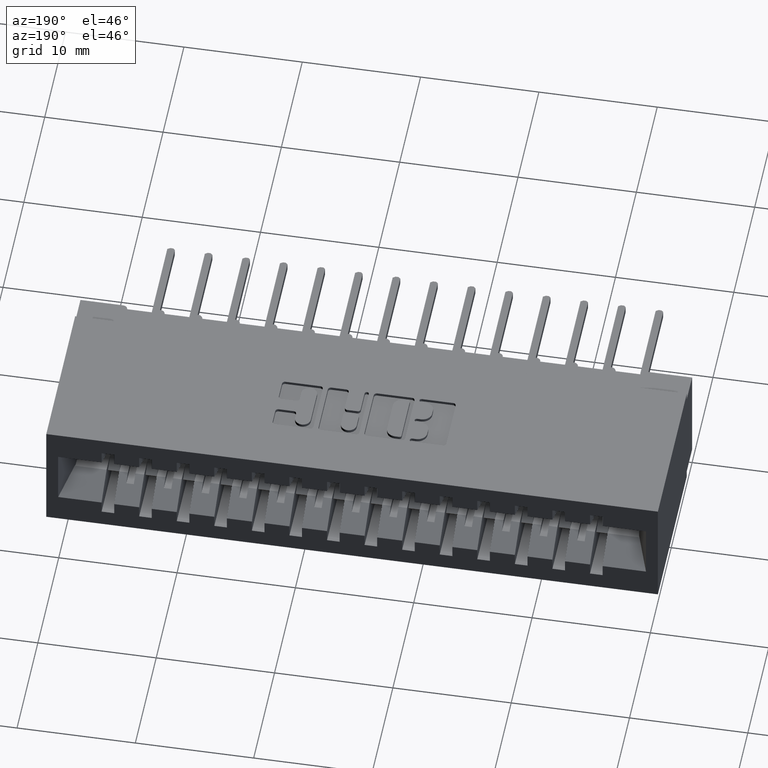
[diagram: clean part render]
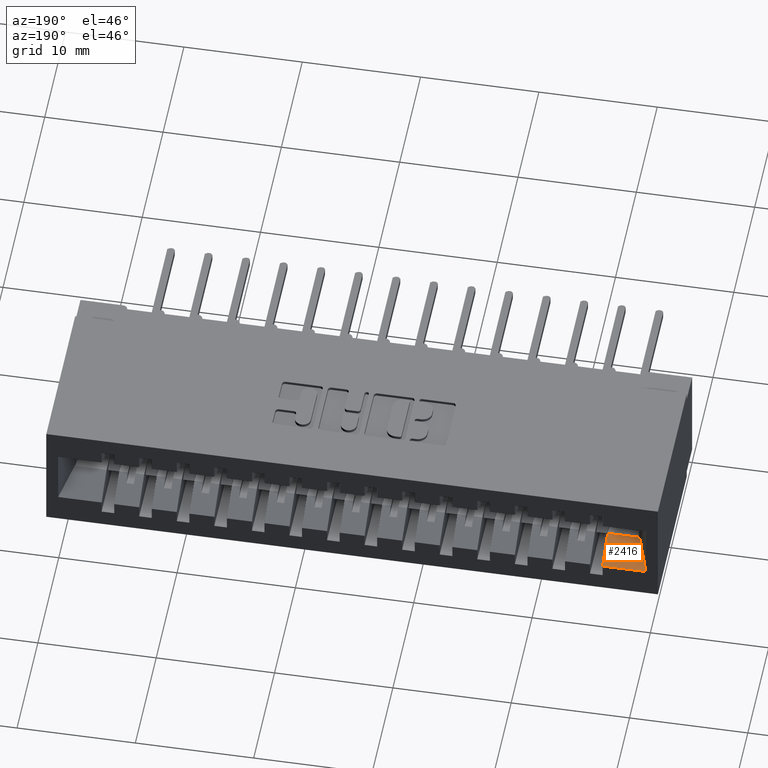
[diagram: same view with one face highlighted and labeled with its STEP entity id]
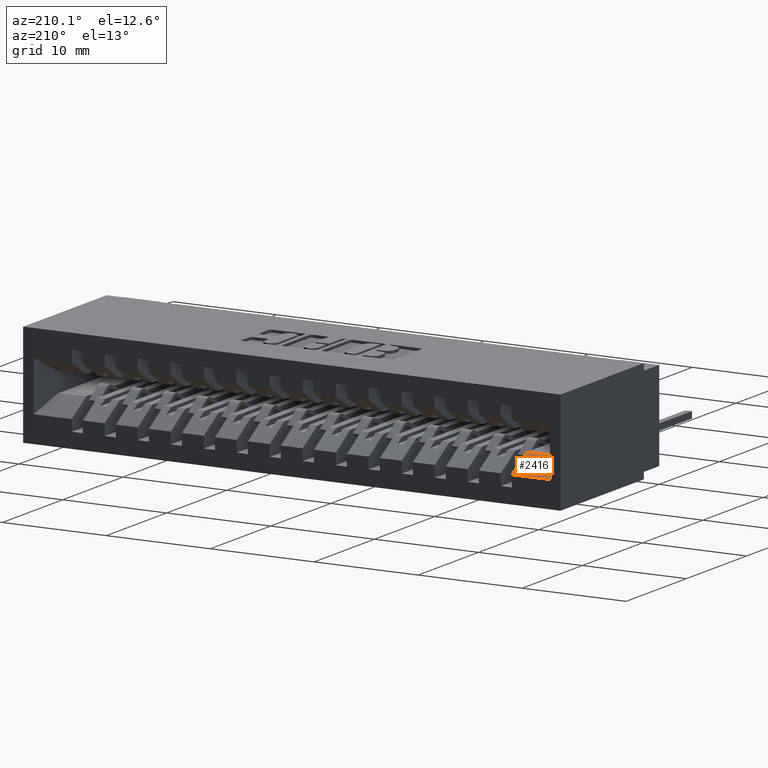
[diagram: same view with one face highlighted and labeled with its STEP entity id]
A machine part, auxiliary view. The second image highlights one B-rep face of the part: STEP entity #2416.
A second angle (auxiliary view) of the same face is appended — the face is thin or edge-on in the first view.
In plain terms, the highlighted planar face has unit normal (0, 0.5194, 0.8545).
Its self-contained STEP definition (entity closure, byte-faithful):
#328 = CARTESIAN_POINT ( 'NONE',  ( 0.07797986887082393459, 0.5499999999999999334, -0.2320000000000000395 ) ) ;
#1500 = EDGE_CURVE ( 'NONE', #8116, #21461, #11558, .T. ) ;
#2416 = ADVANCED_FACE ( 'NONE', ( #9724 ), #5629, .T. ) ;
#3371 = VERTEX_POINT ( 'NONE', #328 ) ;
#4930 = EDGE_CURVE ( 'NONE', #21461, #24449, #21767, .T. ) ;
#4938 = DIRECTION ( 'NONE',  ( -1.000000000000000000, 0.0000000000000000000, 0.0000000000000000000 ) ) ;
#5629 = PLANE ( 'NONE',  #7460 ) ;
#5825 = LINE ( 'NONE', #17302, #19016 ) ;
#7460 = AXIS2_PLACEMENT_3D ( 'NONE', #15057, #9346, #9475 ) ;
#7914 = CARTESIAN_POINT ( 'NONE',  ( 2.166979362203022230, 0.6449999999999999067, -0.2897500000000000075 ) ) ;
#8116 = VERTEX_POINT ( 'NONE', #8743 ) ;
#8389 = EDGE_LOOP ( 'NONE', ( #19223, #9409, #11560, #22757 ) ) ;
#8743 = CARTESIAN_POINT ( 'NONE',  ( 0.1839999999999996638, 0.5499999999999999334, -0.2320000000000000118 ) ) ;
#9346 = DIRECTION ( 'NONE',  ( 0.0000000000000000000, 0.5194474936862355507, 0.8545023705661023428 ) ) ;
#9409 = ORIENTED_EDGE ( 'NONE', *, *, #1500, .T. ) ;
#9475 = DIRECTION ( 'NONE',  ( 0.0000000000000000000, -0.8545023705661022317, 0.5194474936862354397 ) ) ;
#9724 = FACE_OUTER_BOUND ( 'NONE', #8389, .T. ) ;
#11558 = LINE ( 'NONE', #15242, #19656 ) ;
#11560 = ORIENTED_EDGE ( 'NONE', *, *, #4930, .T. ) ;
#12526 = CARTESIAN_POINT ( 'NONE',  ( 0.1839999999999996638, 0.6449999999999999067, -0.2897499999999999520 ) ) ;
#14080 = EDGE_CURVE ( 'NONE', #24449, #3371, #5825, .T. ) ;
#14611 = LINE ( 'NONE', #22360, #16352 ) ;
#14749 = VECTOR ( 'NONE', #16048, 39.37007874015748143 ) ;
#15057 = CARTESIAN_POINT ( 'NONE',  ( 2.166979362203022230, 0.5499999999999999334, -0.2320000000000000395 ) ) ;
#15242 = CARTESIAN_POINT ( 'NONE',  ( 0.1839999999999997193, 0.5499999999999997113, -0.2319999999999999007 ) ) ;
#16048 = DIRECTION ( 'NONE',  ( -1.000000000000000000, 0.0000000000000000000, 0.0000000000000000000 ) ) ;
#16352 = VECTOR ( 'NONE', #4938, 39.37007874015748143 ) ;
#17166 = DIRECTION ( 'NONE',  ( 0.3263402238770147790, -0.8077203978589356792, 0.4910089786984578319 ) ) ;
#17302 = CARTESIAN_POINT ( 'NONE',  ( 0.09137042947794425662, 0.5168571994814417092, -0.2118526660005607409 ) ) ;
#17924 = CARTESIAN_POINT ( 'NONE',  ( 0.03959737741648430842, 0.6449999999999999067, -0.2897500000000000075 ) ) ;
#19016 = VECTOR ( 'NONE', #17166, 39.37007874015748143 ) ;
#19223 = ORIENTED_EDGE ( 'NONE', *, *, #19482, .F. ) ;
#19482 = EDGE_CURVE ( 'NONE', #8116, #3371, #14611, .T. ) ;
#19656 = VECTOR ( 'NONE', #21193, 39.37007874015748143 ) ;
#21193 = DIRECTION ( 'NONE',  ( -1.238924702507070970E-16, 0.8545023705661022317, -0.5194474936862354397 ) ) ;
#21461 = VERTEX_POINT ( 'NONE', #12526 ) ;
#21767 = LINE ( 'NONE', #7914, #14749 ) ;
#22360 = CARTESIAN_POINT ( 'NONE',  ( 2.166979362203022230, 0.5499999999999999334, -0.2320000000000000395 ) ) ;
#22757 = ORIENTED_EDGE ( 'NONE', *, *, #14080, .T. ) ;
#24449 = VERTEX_POINT ( 'NONE', #17924 ) ;